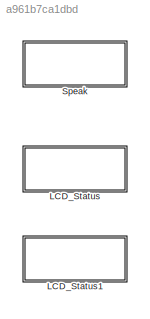
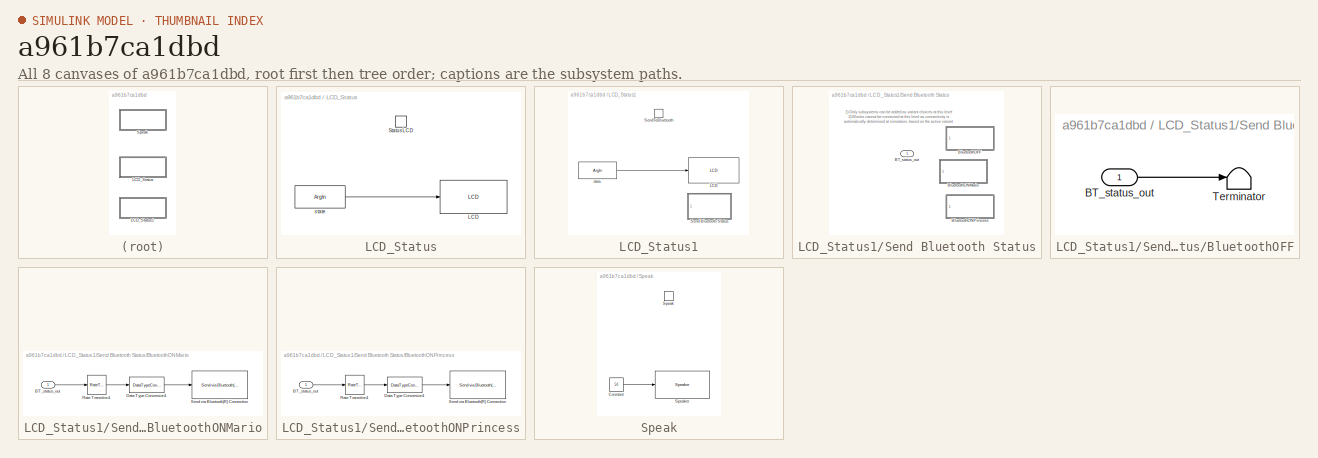
[diagram: thumbnail index - all 8 canvases of the model, root first then tree order]
MODEL slx_a961b7ca1dbd
KIND library
BLOCK [SubSystem] LCD_Status
  Ports = [0, 0, 0, 1]
  RequestExecContextInheritance = off
  TreatAsAtomicUnit = on
BLOCK [Reference] LCD_Status/LCD  REF=legonxtlib/LCD
  Ports = [1]
  SourceBlock = legonxtlib/LCD
  SourceType = LEGO MINDSTORMS NXT LCD
  slcdFormat = Decimal
  slcdLine = 1
  slcdStr = Status
BLOCK [TriggerPort] LCD_Status/StatusLCD
  FunctionName = StatusLCD
  IsSimulinkFunction = on
  Ports = []
  StatesWhenEnabling = held
  TriggerType = function-call
BLOCK [ArgIn] LCD_Status/state
  ArgumentName = state
  OutDataTypeStr = uint16
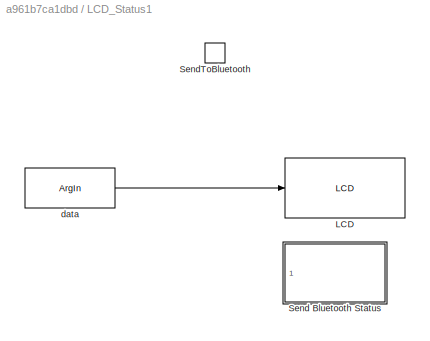
BLOCK [SubSystem] LCD_Status1
  Commented = on
  Ports = [0, 0, 0, 1]
  RequestExecContextInheritance = off
  TreatAsAtomicUnit = on
BLOCK [Reference] LCD_Status1/LCD  REF=legonxtlib/LCD
  Ports = [1]
  SourceBlock = legonxtlib/LCD
  SourceType = LEGO MINDSTORMS NXT LCD
  slcdFormat = Decimal
  slcdLine = 1
  slcdStr = Status
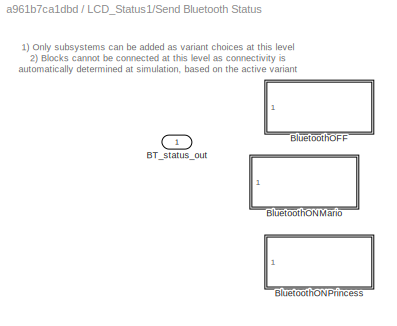
BLOCK [SubSystem] LCD_Status1/Send Bluetooth Status
  OverrideUsingVariant = BluetoothOFF
  Ports = [1]
  RequestExecContextInheritance = off
  Variant = on
BLOCK [Inport] LCD_Status1/Send Bluetooth Status/BT_status_out
  IconDisplay = Port number
BLOCK [SubSystem] LCD_Status1/Send Bluetooth Status/BluetoothOFF
  Ports = [1]
  RequestExecContextInheritance = off
  VariantControl = BluetoothOFF
BLOCK [Inport] LCD_Status1/Send Bluetooth Status/BluetoothOFF/BT_status_out
  IconDisplay = Port number
BLOCK [Terminator] LCD_Status1/Send Bluetooth Status/BluetoothOFF/Terminator
BLOCK [SubSystem] LCD_Status1/Send Bluetooth Status/BluetoothONMario
  Ports = [1]
  RequestExecContextInheritance = off
  VariantControl = BluetoothONMario
BLOCK [Inport] LCD_Status1/Send Bluetooth Status/BluetoothONMario/BT_status_out
  IconDisplay = Port number
BLOCK [DataTypeConversion] LCD_Status1/Send Bluetooth Status/BluetoothONMario/Data Type Conversion1
  OutDataTypeStr = uint8
  RndMeth = Floor
  SaturateOnIntegerOverflow = off
BLOCK [RateTransition] LCD_Status1/Send Bluetooth Status/BluetoothONMario/Rate Transition1
  OutPortSampleTime = 0.1
BLOCK [Reference] LCD_Status1/Send Bluetooth Status/BluetoothONMario/Send via Bluetooth(R) Connection  REF=legonxtlib/Send via Bluetooth(R) Connection
  Ports = [1]
  SourceBlock = legonxtlib/Send via Bluetooth(R) Connection
  SourceType = LEGO MINDSTORMS NXT Send via Bluetooth(R) Connection
  mailbox = 4
BLOCK [SubSystem] LCD_Status1/Send Bluetooth Status/BluetoothONPrincess
  Ports = [1]
  RequestExecContextInheritance = off
  VariantControl = BluetoothONPrincess
BLOCK [Inport] LCD_Status1/Send Bluetooth Status/BluetoothONPrincess/BT_status_out
  IconDisplay = Port number
BLOCK [DataTypeConversion] LCD_Status1/Send Bluetooth Status/BluetoothONPrincess/Data Type Conversion1
  OutDataTypeStr = uint8
  RndMeth = Floor
  SaturateOnIntegerOverflow = off
BLOCK [RateTransition] LCD_Status1/Send Bluetooth Status/BluetoothONPrincess/Rate Transition1
  OutPortSampleTime = 0.1
BLOCK [Reference] LCD_Status1/Send Bluetooth Status/BluetoothONPrincess/Send via Bluetooth(R) Connection  REF=legonxtlib/Send via Bluetooth(R) Connection
  Ports = [1]
  SourceBlock = legonxtlib/Send via Bluetooth(R) Connection
  SourceType = LEGO MINDSTORMS NXT Send via Bluetooth(R) Connection
  mailbox = 3
BLOCK [TriggerPort] LCD_Status1/SendToBluetooth
  FunctionName = SendToBluetooth
  IsSimulinkFunction = on
  Ports = []
  StatesWhenEnabling = held
  TriggerType = function-call
BLOCK [ArgIn] LCD_Status1/data
  ArgumentName = data
  OutDataTypeStr = uint16
BLOCK [SubSystem] Speak
  Ports = [0, 0, 0, 1]
  RequestExecContextInheritance = off
  TreatAsAtomicUnit = on
BLOCK [Constant] Speak/Constant
  Value = 50
BLOCK [TriggerPort] Speak/Speak
  FunctionName = Speak
  IsSimulinkFunction = on
  Ports = []
  StatesWhenEnabling = held
  TriggerType = function-call
BLOCK [Reference] Speak/Speaker  REF=legonxtlib/Speaker
  Ports = [1]
  SourceBlock = legonxtlib/Speaker
  SourceType = LEGO MINDSTORMS NXT Speaker
  sinputMode = Volume only
  sspeakerDuration = 100
  sspeakerFreq = 800
  sspeakerVolume = 50
ANNOTATION LCD_Status1/Send Bluetooth Status: 1) Only subsystems can be added as variant choices at this level 2) Blocks cannot be connected at this level as connectivity is automatically determined at simulation, based on the active variant
LINE LCD_Status/state:1 -> LCD_Status/LCD:1
LINE LCD_Status1/Send Bluetooth Status/BluetoothOFF/BT_status_out:1 -> LCD_Status1/Send Bluetooth Status/BluetoothOFF/Terminator:1
LINE LCD_Status1/Send Bluetooth Status/BluetoothONMario/BT_status_out:1 -> LCD_Status1/Send Bluetooth Status/BluetoothONMario/Rate Transition1:1
LINE LCD_Status1/Send Bluetooth Status/BluetoothONMario/Data Type Conversion1:1 -> LCD_Status1/Send Bluetooth Status/BluetoothONMario/Send via Bluetooth(R) Connection:1
LINE LCD_Status1/Send Bluetooth Status/BluetoothONMario/Rate Transition1:1 -> LCD_Status1/Send Bluetooth Status/BluetoothONMario/Data Type Conversion1:1
LINE LCD_Status1/Send Bluetooth Status/BluetoothONPrincess/BT_status_out:1 -> LCD_Status1/Send Bluetooth Status/BluetoothONPrincess/Rate Transition1:1
LINE LCD_Status1/Send Bluetooth Status/BluetoothONPrincess/Data Type Conversion1:1 -> LCD_Status1/Send Bluetooth Status/BluetoothONPrincess/Send via Bluetooth(R) Connection:1
LINE LCD_Status1/Send Bluetooth Status/BluetoothONPrincess/Rate Transition1:1 -> LCD_Status1/Send Bluetooth Status/BluetoothONPrincess/Data Type Conversion1:1
LINE LCD_Status1/data:1 -> LCD_Status1/LCD:1
LINE Speak/Constant:1 -> Speak/Speaker:1
